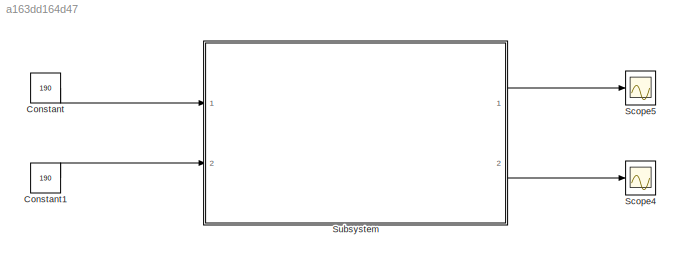
MODEL slx_a163dd164d47
KIND model
CONFIG AbsTol = auto
CONFIG EnableMultiTasking = off
CONFIG FixedStep = 0.001
CONFIG MaxStep = auto
CONFIG MinStep = auto
CONFIG RelTol = 1e-3
CONFIG SampleTimeConstraint = Unconstrained
CONFIG SolverName = VariableStepAuto
CONFIG StartTime = 0.0
CONFIG StopTime = inf
BLOCK [Constant] Constant
  OutDataTypeStr = uint8
  Value = 190
BLOCK [Constant] Constant1
  OutDataTypeStr = uint8
  Value = 190
BLOCK [Scope] Scope4
  Floating = off
  NumInputPorts = 1
  Ports = [1]
  ScopeSpecificationString = Simulink.scopes.TimeScopeBlockCfg('CurrentConfiguration', extmgr.ConfigurationSet(extmgr.Configuration('Core','General UI',true),extmgr.Configuration('Core','Source UI',true),extmgr.Configuration('Sources','WiredSimulink',true,'DataLoggingVariableName','ScopeData2'),extmgr.Configuration('Visuals','Time Domain',true,'SerializedDisplays',{struct('MinYLimReal','-22.625','MaxYLimReal','203.625','YLabe...<+1733ch>
BLOCK [Scope] Scope5
  Floating = off
  NumInputPorts = 1
  Ports = [1]
  ScopeSpecificationString = Simulink.scopes.TimeScopeBlockCfg('CurrentConfiguration', extmgr.ConfigurationSet(extmgr.Configuration('Core','General UI',true),extmgr.Configuration('Core','Source UI',true),extmgr.Configuration('Sources','WiredSimulink',true,'DataLoggingVariableName','ScopeData3'),extmgr.Configuration('Visuals','Time Domain',true,'SerializedDisplays',{struct('MinYLimReal','-22.625','MaxYLimReal','203.625','YLabe...<+1733ch>
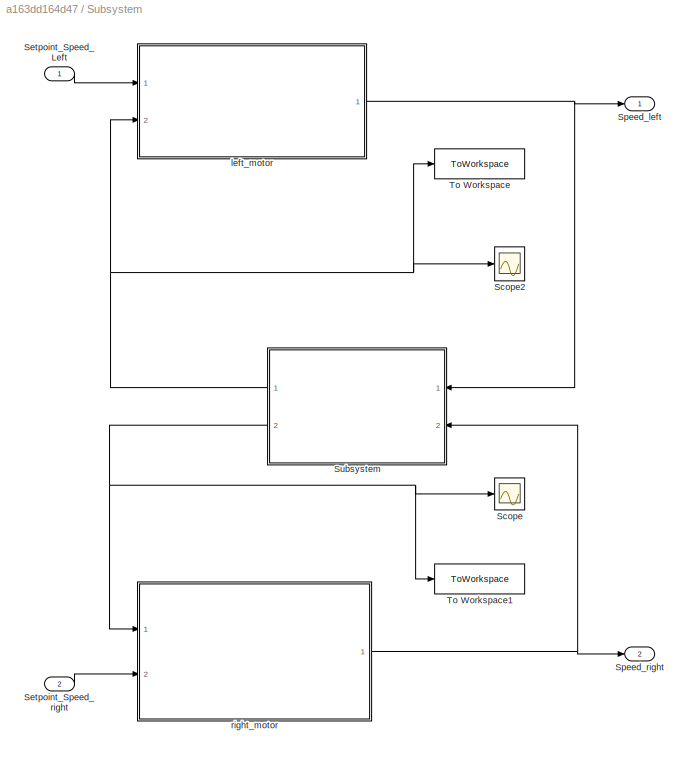
BLOCK [SubSystem] Subsystem
  Ports = [2, 2]
BLOCK [Scope] Subsystem/Scope
  Floating = off
  NumInputPorts = 1
  Ports = [1]
  ScopeSpecificationString = Simulink.scopes.TimeScopeBlockCfg('CurrentConfiguration', extmgr.ConfigurationSet(extmgr.Configuration('Core','General UI',true),extmgr.Configuration('Core','Source UI',true),extmgr.Configuration('Sources','WiredSimulink',true,'DataLoggingVariableName','ScopeData1'),extmgr.Configuration('Visuals','Time Domain',true),extmgr.Configuration('Tools','Plot Navigation',true),extmgr.Configuration('Tools',...<+40ch>
BLOCK [Scope] Subsystem/Scope2
  Floating = off
  NumInputPorts = 1
  Ports = [1]
  ScopeSpecificationString = Simulink.scopes.TimeScopeBlockCfg('CurrentConfiguration', extmgr.ConfigurationSet(extmgr.Configuration('Core','General UI',true),extmgr.Configuration('Core','Source UI',true),extmgr.Configuration('Sources','WiredSimulink',true),extmgr.Configuration('Visuals','Time Domain',true,'SerializedDisplays',{struct('MinYLimReal','-22.625','MaxYLimReal','203.625','YLabelReal','','MinYLimMag','0.00000','MaxYL...<+1668ch>
BLOCK [Inport] Subsystem/Setpoint_Speed_Left
BLOCK [Inport] Subsystem/Setpoint_Speed_right
  Port = 2
BLOCK [Outport] Subsystem/Speed_left
BLOCK [Outport] Subsystem/Speed_right
  Port = 2
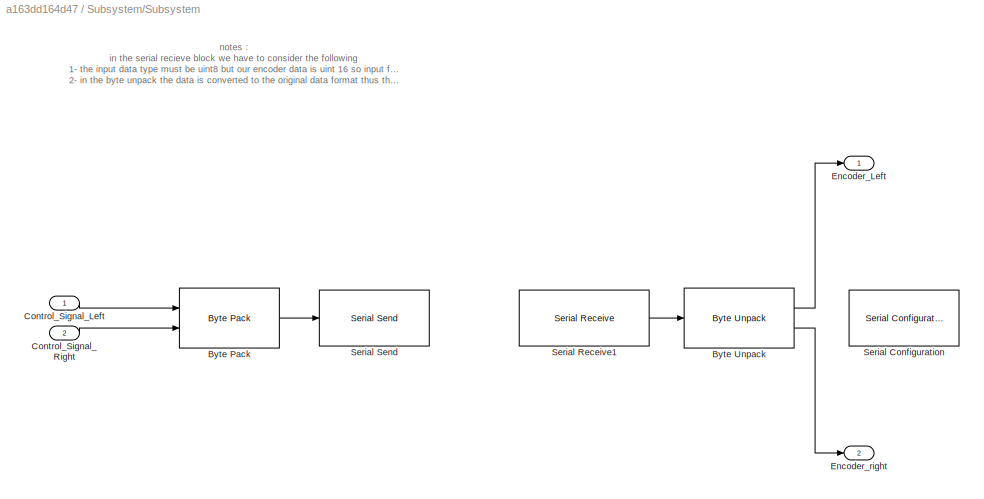
BLOCK [SubSystem] Subsystem/Subsystem
  NameLocation = top
  Ports = [2, 2]
BLOCK [Reference] Subsystem/Subsystem/Byte Pack  REF=svdutilitieslib/Byte Pack
  Ports = [2, 1]
  SourceBlock = svdutilitieslib/Byte Pack
  SourceType = Byte pack
BLOCK [Reference] Subsystem/Subsystem/Byte Unpack  REF=etargetslib/Byte Unpack
  Ports = [1, 2]
  SourceBlock = etargetslib/Byte Unpack
  SourceType = Byte Unpack
BLOCK [Inport] Subsystem/Subsystem/Control_Signal_Left
BLOCK [Inport] Subsystem/Subsystem/Control_Signal_Right
  Port = 2
BLOCK [Outport] Subsystem/Subsystem/Encoder_Left
BLOCK [Outport] Subsystem/Subsystem/Encoder_right
  Port = 2
BLOCK [Reference] Subsystem/Subsystem/Serial Configuration  REF=instrumentlib/Serial Configuration
  ObjConstructor = serial('COM9');
  Ports = []
  Priority = -200000
  SourceBlock = instrumentlib/Serial Configuration
  SourceType = system.SerialConfiguration
BLOCK [Reference] Subsystem/Subsystem/Serial Receive1  REF=instrumentlib/Serial Receive
  ObjConstructor = serial('COM9');
  Ports = [0, 1]
  Priority = 1
  SourceBlock = instrumentlib/Serial Receive
  SourceType = system.SerialReceive
BLOCK [Reference] Subsystem/Subsystem/Serial Send  REF=instrumentlib/Serial Send
  ObjConstructor = serial('COM9');
  Ports = [1]
  Priority = 1
  SourceBlock = instrumentlib/Serial Send
  SourceType = system.SerialSend
BLOCK [ToWorkspace] Subsystem/To Workspace
  FixptAsFi = on
  MaxDataPoints = inf
  Ports = [1]
  SampleTime = -1
  VariableName = left_motor
BLOCK [ToWorkspace] Subsystem/To Workspace1
  FixptAsFi = on
  MaxDataPoints = inf
  Ports = [1]
  SampleTime = -1
  VariableName = right_motor
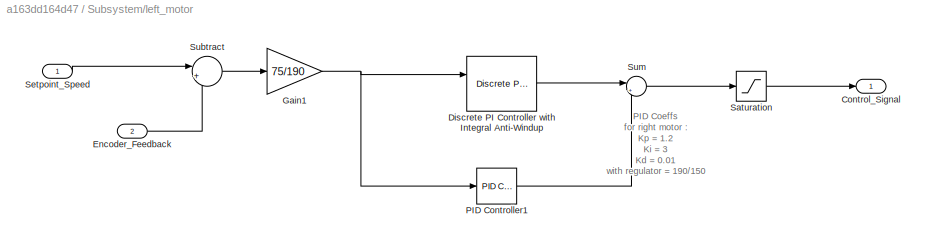
BLOCK [SubSystem] Subsystem/left_motor
  Ports = [2, 1]
BLOCK [Outport] Subsystem/left_motor/Control_Signal
BLOCK [Reference] Subsystem/left_motor/Discrete PI Controller with Integral Anti-Windup  REF=eeDiscretePi/Discrete PI Controller
with Integral Anti-Windup
  Ports = [2, 1]
  SourceBlock = eeDiscretePi/Discrete PI Controller\nwith Integral Anti-Windup
  SourceType = Discrete PI Controller with Integral Anti-Windup
BLOCK [Inport] Subsystem/left_motor/Encoder_Feedback
  Port = 2
BLOCK [Gain] Subsystem/left_motor/Gain1
  Gain = 75/190
  OutDataTypeStr = int32
BLOCK [Reference] Subsystem/left_motor/PID Controller1  REF=pid_lib/PID Controller
  Ports = [1, 1]
  SourceBlock = pid_lib/PID Controller
  SourceType = PID 1dof
BLOCK [Saturate] Subsystem/left_motor/Saturation
  LowerLimit = 0
  OutDataTypeStr = uint8
  UpperLimit = 100
BLOCK [Inport] Subsystem/left_motor/Setpoint_Speed
BLOCK [Sum] Subsystem/left_motor/Subtract
  Inputs = |+-
  OutDataTypeStr = int32
  Ports = [2, 1]
  RndMeth = Round
BLOCK [Sum] Subsystem/left_motor/Sum
  Inputs = |++
  Ports = [2, 1]
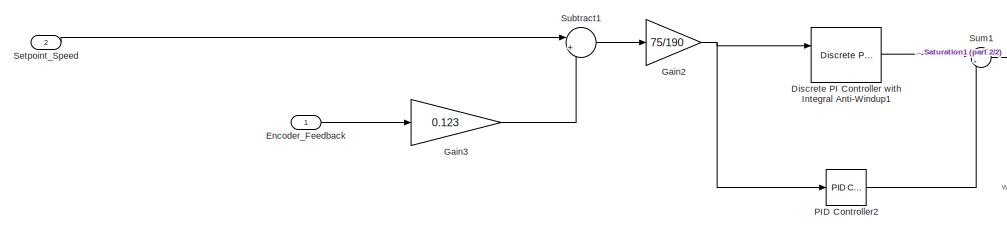
[diagram: Subsystem/right_motor - part 1/2, left side, full height]
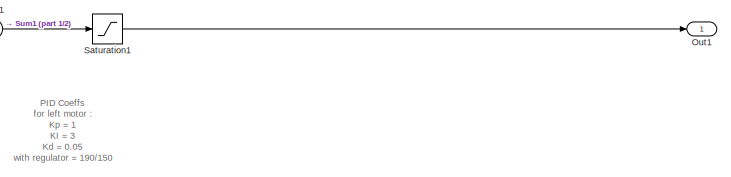
[diagram: Subsystem/right_motor - part 2/2, middle right region]
BLOCK [SubSystem] Subsystem/right_motor
  Ports = [2, 1]
BLOCK [Reference] Subsystem/right_motor/Discrete PI Controller with Integral Anti-Windup1  REF=eeDiscretePi/Discrete PI Controller
with Integral Anti-Windup
  Ports = [2, 1]
  SourceBlock = eeDiscretePi/Discrete PI Controller\nwith Integral Anti-Windup
  SourceType = Discrete PI Controller with Integral Anti-Windup
BLOCK [Inport] Subsystem/right_motor/Encoder_Feedback
  NameLocation = top
BLOCK [Gain] Subsystem/right_motor/Gain2
  Gain = 75/190
  OutDataTypeStr = int32
BLOCK [Gain] Subsystem/right_motor/Gain3
  Gain = 0.123
  OutDataTypeStr = int32
BLOCK [Outport] Subsystem/right_motor/Out1
BLOCK [Reference] Subsystem/right_motor/PID Controller2  REF=pid_lib/PID Controller
  Ports = [1, 1]
  SourceBlock = pid_lib/PID Controller
  SourceType = PID 1dof
BLOCK [Saturate] Subsystem/right_motor/Saturation1
  LowerLimit = 0
  OutDataTypeStr = uint8
  UpperLimit = 100
BLOCK [Inport] Subsystem/right_motor/Setpoint_Speed
  Port = 2
BLOCK [Sum] Subsystem/right_motor/Subtract1
  Inputs = |+-
  NameLocation = top
  OutDataTypeStr = int32
  Ports = [2, 1]
  RndMeth = Round
BLOCK [Sum] Subsystem/right_motor/Sum1
  Inputs = |++
  Ports = [2, 1]
ANNOTATION Subsystem/Subsystem: notes : in the serial recieve block we have to consider the following 1- the input data type must be uint8 but our encoder data is uint 16 so input format is column major and the data size is [1 2] 2- in the byte unpack the data is converted to the original data format thus the output port data type is uint16
ANNOTATION Subsystem/left_motor: PID Coeffs for right motor : Kp = 1.2 Ki = 3 Kd = 0.01 with regulator = 190/150 for right motor:
ANNOTATION Subsystem/right_motor: PID Coeffs for left motor : Kp = 1 KI = 3 Kd = 0.05 with regulator = 190/150 for right motor:
LINE Constant1:1 -> Subsystem:2
LINE Constant:1 -> Subsystem:1
LINE Subsystem/Setpoint_Speed_Left:1 -> Subsystem/left_motor:1
LINE Subsystem/Setpoint_Speed_right:1 -> Subsystem/right_motor:2
LINE Subsystem/Subsystem/Byte Pack:1 -> Subsystem/Subsystem/Serial Send:1
LINE Subsystem/Subsystem/Byte Unpack:1 -> Subsystem/Subsystem/Encoder_Left:1
LINE Subsystem/Subsystem/Byte Unpack:2 -> Subsystem/Subsystem/Encoder_right:1
LINE Subsystem/Subsystem/Control_Signal_Left:1 -> Subsystem/Subsystem/Byte Pack:1
LINE Subsystem/Subsystem/Control_Signal_Right:1 -> Subsystem/Subsystem/Byte Pack:2
LINE Subsystem/Subsystem/Serial Receive1:1 -> Subsystem/Subsystem/Byte Unpack:1
NET Subsystem/Subsystem:1 -> Subsystem/Scope2:1, Subsystem/To Workspace:1, Subsystem/left_motor:2
NET Subsystem/Subsystem:2 -> Subsystem/Scope:1, Subsystem/To Workspace1:1, Subsystem/right_motor:1
LINE Subsystem/left_motor/Discrete PI Controller with Integral Anti-Windup:1 -> Subsystem/left_motor/Sum:1
LINE Subsystem/left_motor/Encoder_Feedback:1 -> Subsystem/left_motor/Subtract:2
NET Subsystem/left_motor/Gain1:1 -> Subsystem/left_motor/Discrete PI Controller with Integral Anti-Windup:1, Subsystem/left_motor/PID Controller1:1
LINE Subsystem/left_motor/PID Controller1:1 -> Subsystem/left_motor/Sum:2
LINE Subsystem/left_motor/Saturation:1 -> Subsystem/left_motor/Control_Signal:1
LINE Subsystem/left_motor/Setpoint_Speed:1 -> Subsystem/left_motor/Subtract:1
LINE Subsystem/left_motor/Subtract:1 -> Subsystem/left_motor/Gain1:1
LINE Subsystem/left_motor/Sum:1 -> Subsystem/left_motor/Saturation:1
NET Subsystem/left_motor:1 -> Subsystem/Speed_left:1, Subsystem/Subsystem:1
LINE Subsystem/right_motor/Discrete PI Controller with Integral Anti-Windup1:1 -> Subsystem/right_motor/Sum1:1
LINE Subsystem/right_motor/Encoder_Feedback:1 -> Subsystem/right_motor/Gain3:1
NET Subsystem/right_motor/Gain2:1 -> Subsystem/right_motor/Discrete PI Controller with Integral Anti-Windup1:1, Subsystem/right_motor/PID Controller2:1
LINE Subsystem/right_motor/Gain3:1 -> Subsystem/right_motor/Subtract1:2
LINE Subsystem/right_motor/PID Controller2:1 -> Subsystem/right_motor/Sum1:2
LINE Subsystem/right_motor/Saturation1:1 -> Subsystem/right_motor/Out1:1
LINE Subsystem/right_motor/Setpoint_Speed:1 -> Subsystem/right_motor/Subtract1:1
LINE Subsystem/right_motor/Subtract1:1 -> Subsystem/right_motor/Gain2:1
LINE Subsystem/right_motor/Sum1:1 -> Subsystem/right_motor/Saturation1:1
NET Subsystem/right_motor:1 -> Subsystem/Speed_right:1, Subsystem/Subsystem:2
LINE Subsystem:1 -> Scope5:1
LINE Subsystem:2 -> Scope4:1
note: NET lines group one-source signal fan-out (src -> all destinations, sorted); 1:1 wires keep LINE
